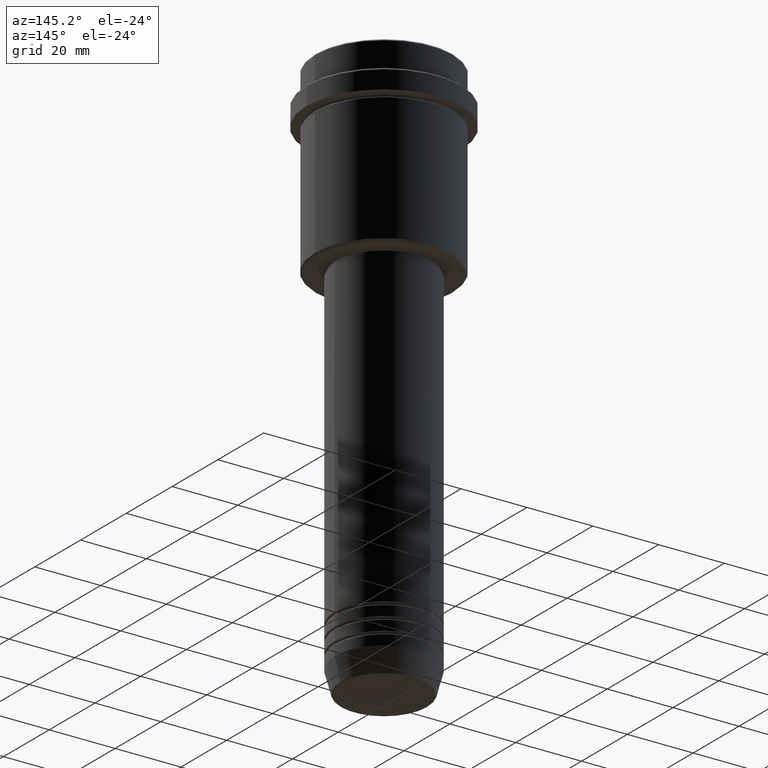
[diagram: clean part render]
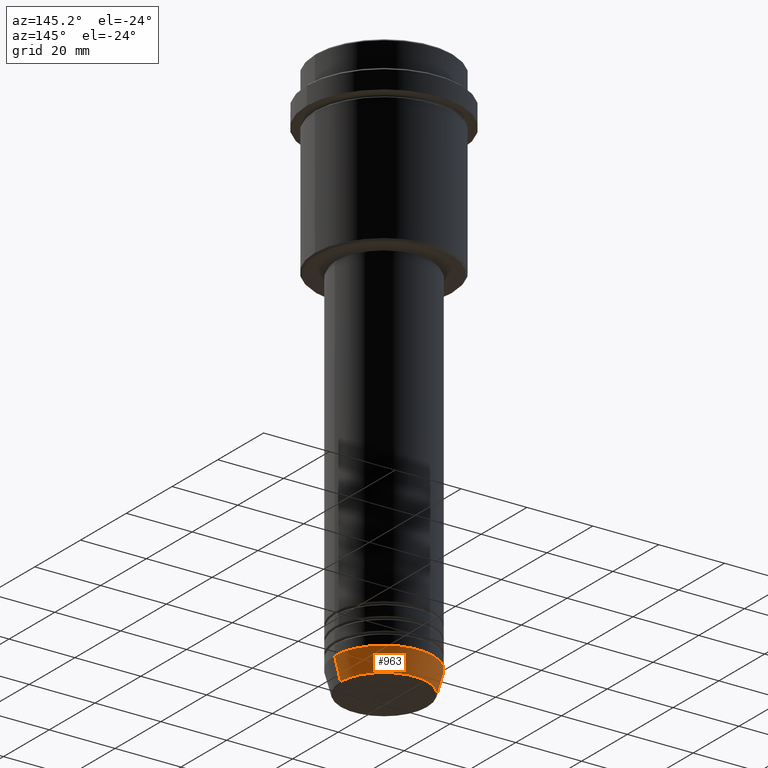
[diagram: same view with one face highlighted and labeled with its STEP entity id]
A machine part, auxiliary view. The second image highlights one B-rep face of the part: STEP entity #963.
In plain terms, the highlighted conical surface has half-angle 15 deg.
Its self-contained STEP definition (entity closure, byte-faithful):
#124 = CARTESIAN_POINT ( 'NONE',  ( -13.22365507213719660, 1.728200442216588780E-15, -169.6294095225512422 ) ) ;
#135 = DIRECTION ( 'NONE',  ( 1.000000000000000000, 0.000000000000000000, 0.000000000000000000 ) ) ;
#252 = DIRECTION ( 'NONE',  ( 0.2588190451025213501, 0.000000000000000000, 0.9659258262890680902 ) ) ;
#267 = CIRCLE ( 'NONE', #398, 13.22365507213719482 ) ;
#273 = ORIENTED_EDGE ( 'NONE', *, *, #616, .T. ) ;
#298 = DIRECTION ( 'NONE',  ( 1.000000000000000000, 0.000000000000000000, 0.000000000000000000 ) ) ;
#300 = VERTEX_POINT ( 'NONE', #124 ) ;
#314 = CIRCLE ( 'NONE', #634, 15.00000000000000000 ) ;
#318 = LINE ( 'NONE', #1395, #609 ) ;
#361 = VERTEX_POINT ( 'NONE', #538 ) ;
#366 = CARTESIAN_POINT ( 'NONE',  ( 15.00000000000000000, 0.000000000000000000, -162.9999999999999716 ) ) ;
#397 = DIRECTION ( 'NONE',  ( -0.000000000000000000, -0.000000000000000000, 1.000000000000000000 ) ) ;
#398 = AXIS2_PLACEMENT_3D ( 'NONE', #955, #498, #1056 ) ;
#454 = VERTEX_POINT ( 'NONE', #1009 ) ;
#498 = DIRECTION ( 'NONE',  ( -0.000000000000000000, -0.000000000000000000, 1.000000000000000000 ) ) ;
#538 = CARTESIAN_POINT ( 'NONE',  ( 13.22365507213719482, 0.000000000000000000, -169.6294095225512422 ) ) ;
#548 = DIRECTION ( 'NONE',  ( -0.000000000000000000, -0.000000000000000000, 1.000000000000000000 ) ) ;
#554 = ORIENTED_EDGE ( 'NONE', *, *, #762, .T. ) ;
#609 = VECTOR ( 'NONE', #755, 1000.000000000000000 ) ;
#616 = EDGE_CURVE ( 'NONE', #361, #300, #267, .T. ) ;
#634 = AXIS2_PLACEMENT_3D ( 'NONE', #952, #397, #298 ) ;
#746 = EDGE_CURVE ( 'NONE', #454, #1070, #314, .T. ) ;
#755 = DIRECTION ( 'NONE',  ( -0.2588190451025213501, 3.169619151431772337E-17, 0.9659258262890680902 ) ) ;
#762 = EDGE_CURVE ( 'NONE', #300, #1070, #318, .T. ) ;
#789 = CONICAL_SURFACE ( 'NONE', #1153, 15.00000000000000000, 0.2617993877991500740 ) ;
#827 = EDGE_LOOP ( 'NONE', ( #273, #554, #1372, #975 ) ) ;
#885 = FACE_OUTER_BOUND ( 'NONE', #827, .T. ) ;
#922 = CARTESIAN_POINT ( 'NONE',  ( -15.00000000000000000, 1.836970198721029589E-15, -162.9999999999999716 ) ) ;
#952 = CARTESIAN_POINT ( 'NONE',  ( 0.000000000000000000, 0.000000000000000000, -162.9999999999999716 ) ) ;
#955 = CARTESIAN_POINT ( 'NONE',  ( 0.000000000000000000, 0.000000000000000000, -169.6294095225512422 ) ) ;
#963 = ADVANCED_FACE ( 'NONE', ( #885 ), #789, .T. ) ;
#975 = ORIENTED_EDGE ( 'NONE', *, *, #1080, .F. ) ;
#1009 = CARTESIAN_POINT ( 'NONE',  ( 15.00000000000000000, 0.000000000000000000, -162.9999999999999716 ) ) ;
#1056 = DIRECTION ( 'NONE',  ( 1.000000000000000000, 0.000000000000000000, 0.000000000000000000 ) ) ;
#1070 = VERTEX_POINT ( 'NONE', #922 ) ;
#1080 = EDGE_CURVE ( 'NONE', #361, #454, #1258, .T. ) ;
#1153 = AXIS2_PLACEMENT_3D ( 'NONE', #1196, #548, #135 ) ;
#1196 = CARTESIAN_POINT ( 'NONE',  ( 0.000000000000000000, 0.000000000000000000, -162.9999999999999716 ) ) ;
#1258 = LINE ( 'NONE', #366, #1408 ) ;
#1372 = ORIENTED_EDGE ( 'NONE', *, *, #746, .F. ) ;
#1395 = CARTESIAN_POINT ( 'NONE',  ( -15.00000000000000000, 1.836970198721029589E-15, -162.9999999999999716 ) ) ;
#1408 = VECTOR ( 'NONE', #252, 1000.000000000000000 ) ;